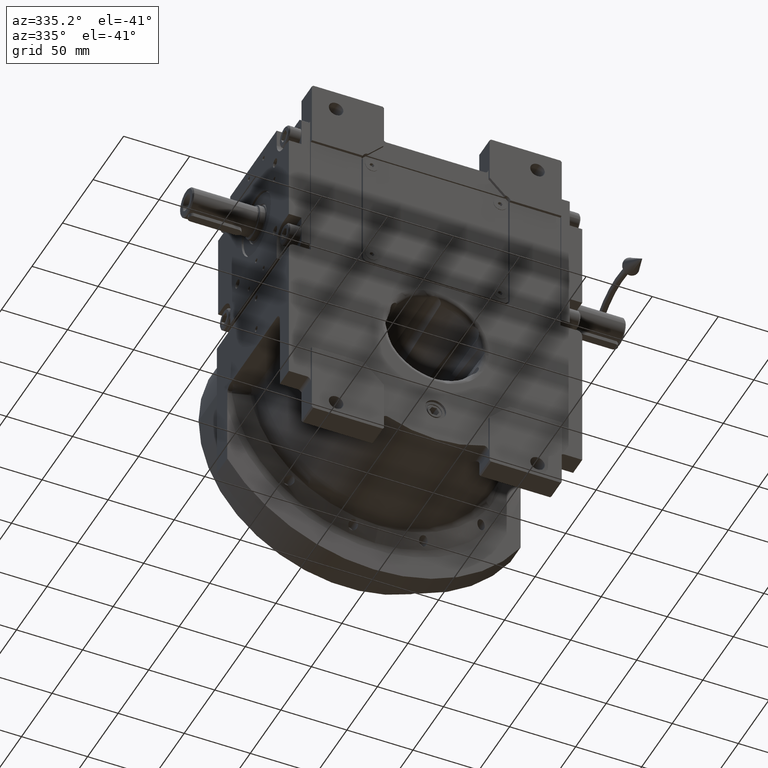
[diagram: clean part render]
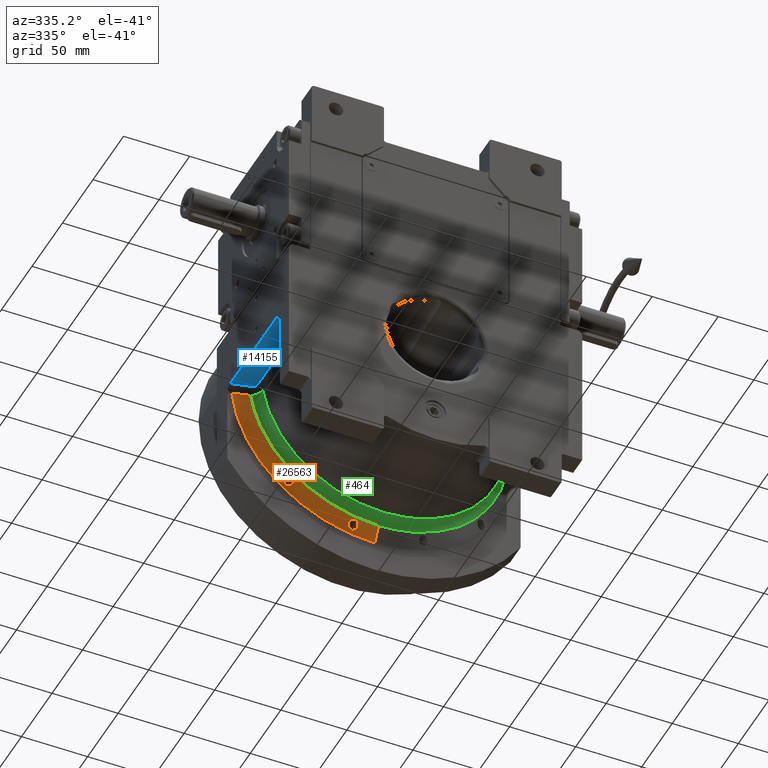
[diagram: same view with three faces highlighted in distinct colors, each labeled with its STEP entity id]
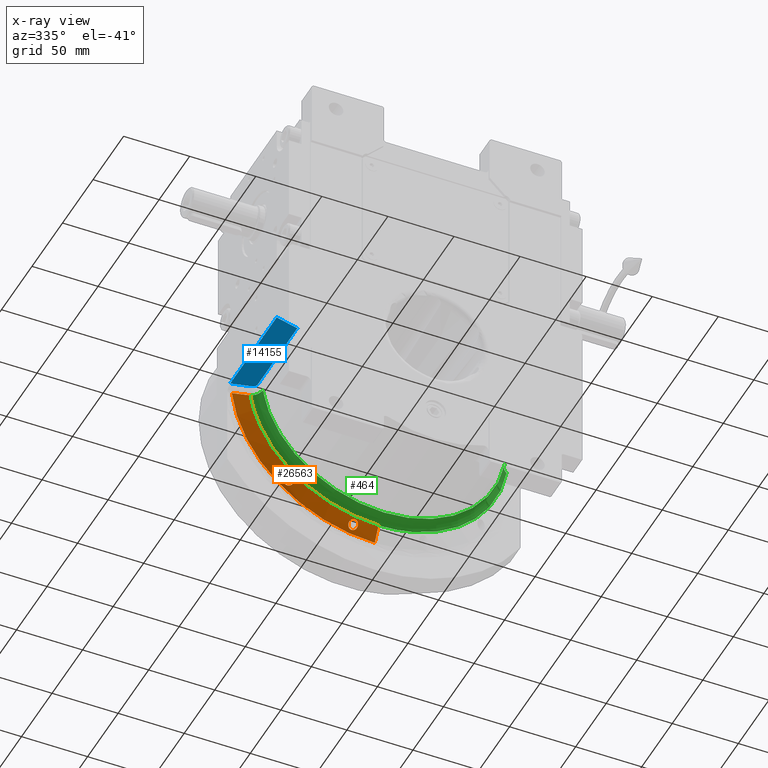
[diagram: x-ray of the same camera — body ghosted, the three highlighted faces saturated]
A machine part, auxiliary view with three faces highlighted in distinct colors.
The next image is the same camera in x-ray (body ghosted, the three faces saturated) — at least one of them is partly hidden behind the body in this view.
Their STEP definitions:

[orange] entity #26563 — the highlighted conical surface has half-angle 60 deg.
#91 = CARTESIAN_POINT ( 'NONE',  ( -66.98103439492290079, 41.60890245835828694, -75.58954542849022573 ) ) ;
#141 = CARTESIAN_POINT ( 'NONE',  ( -16.34057181366540235, 44.34432175079520277, -104.4637949725579631 ) ) ;
#174 = ORIENTED_EDGE ( 'NONE', *, *, #22288, .T. ) ;
#297 = CARTESIAN_POINT ( 'NONE',  ( -9.237055564881299892E-14, -16.12399904833045028, -1.000000000000081712 ) ) ;
#486 = CARTESIAN_POINT ( 'NONE',  ( -21.03059944355404198, 43.83795414668691848, -102.7263971811898955 ) ) ;
#772 = CARTESIAN_POINT ( 'NONE',  ( -66.47473322612175650, 41.38229406885031381, -75.51303032982036711 ) ) ;
#1092 = CARTESIAN_POINT ( 'NONE',  ( -66.63557316265840313, 41.45053153927776179, -75.52883555357412604 ) ) ;
#1249 = CARTESIAN_POINT ( 'NONE',  ( -18.09331083431307263, 40.85859617777224884, -98.04109495310648015 ) ) ;
#1298 = CARTESIAN_POINT ( 'NONE',  ( -66.92885746105687872, 44.51160760126284544, -82.22895676595210546 ) ) ;
#1418 = CARTESIAN_POINT ( 'NONE',  ( -68.14583657145338691, 42.27925522923568025, -76.10688848307425758 ) ) ;
#1588 = CARTESIAN_POINT ( 'NONE',  ( -21.28449398870388976, 43.01580564899651904, -101.2193921216443044 ) ) ;
#1822 = CARTESIAN_POINT ( 'NONE',  ( -21.20972011232749210, 43.60209097489686769, -102.2726500134179588 ) ) ;
#1924 = CARTESIAN_POINT ( 'NONE',  ( -17.73097330528007731, 40.81449223383904723, -98.02991740592824499 ) ) ;
#2146 = EDGE_CURVE ( 'NONE', #65667, #10932, #27639, .T. ) ;
#2263 = CARTESIAN_POINT ( 'NONE',  ( -19.67434926625081459, 41.31338681511606126, -98.53953226742360982 ) ) ;
#2314 = CARTESIAN_POINT ( 'NONE',  ( -68.16347946259398327, 44.72335391706063490, -81.68667453046511184 ) ) ;
#2426 = CARTESIAN_POINT ( 'NONE',  ( -63.08391339580369817, 41.02004609416165692, -77.56080104227457639 ) ) ;
#2595 = CARTESIAN_POINT ( 'NONE',  ( -18.55685797365245548, 40.94082675640963487, -98.09941162123259062 ) ) ;
#2787 = CARTESIAN_POINT ( 'NONE',  ( -65.12248920160860166, 40.94248948602814409, -75.68010028655007204 ) ) ;
#3073 = CARTESIAN_POINT ( 'NONE',  ( -58.33770022237654018, 46.16024937670292871, -108.8793721944054340 ) ) ;
#3447 = EDGE_LOOP ( 'NONE', ( #27328, #35224 ) ) ;
#3898 = VERTEX_POINT ( 'NONE', #19474 ) ;
#3939 = CARTESIAN_POINT ( 'NONE',  ( -16.65576477377504006, 44.45798922382349616, -104.6135469630497710 ) ) ;
#3968 = CARTESIAN_POINT ( 'NONE',  ( -14.96126561534554433, 41.50362317198955964, -99.69754612150774165 ) ) ;
#4230 = CARTESIAN_POINT ( 'NONE',  ( -21.28576229969385025, 43.13789616174320685, -101.4351985602574047 ) ) ;
#4256 = CARTESIAN_POINT ( 'NONE',  ( -15.69129399241424316, 44.04692640415015603, -104.0425066127885998 ) ) ;
#4576 = CARTESIAN_POINT ( 'NONE',  ( -15.35746372829867923, 43.82795239511310115, -103.7087961787889014 ) ) ;
#4737 = CARTESIAN_POINT ( 'NONE',  ( -63.68872352311440466, 42.87383470173428890, -81.18701644432728415 ) ) ;
#4923 = CARTESIAN_POINT ( 'NONE',  ( -19.41475688465490279, 44.65331294770840742, -104.4810056941321790 ) ) ;
#5085 = CARTESIAN_POINT ( 'NONE',  ( -65.76939235611618528, 44.11210652336321658, -82.27512015974016890 ) ) ;
#5209 = CARTESIAN_POINT ( 'NONE',  ( -69.59944930781109917, 43.84506854104964901, -78.44480737441226381 ) ) ;
#5259 = CARTESIAN_POINT ( 'NONE',  ( -16.26584008339917631, 44.31575046781813398, -104.4253884501384135 ) ) ;
#5536 = CARTESIAN_POINT ( 'NONE',  ( -68.83933982942379259, 42.82182288597580566, -76.74729285694229475 ) ) ;
#5591 = CARTESIAN_POINT ( 'NONE',  ( -20.63179147859929330, 44.20330385635097059, -103.4526908809163075 ) ) ;
#6097 = CARTESIAN_POINT ( 'NONE',  ( -66.19240968444481155, 44.28072426235181780, -82.31044945415027314 ) ) ;
#6329 = CARTESIAN_POINT ( 'NONE',  ( -104.2458755376282511, 43.94632228155251141, -13.01284608142500154 ) ) ;
#6360 = CARTESIAN_POINT ( 'NONE',  ( -20.63033031947024654, 41.92337690047073551, -99.42307032378499798 ) ) ;
#6698 = CARTESIAN_POINT ( 'NONE',  ( -20.42896873382872869, 41.76146683889194122, -99.17831591914084299 ) ) ;
#7045 = CARTESIAN_POINT ( 'NONE',  ( -21.28576229969385025, 43.13789616174320685, -101.4351985602574047 ) ) ;
#7105 = CARTESIAN_POINT ( 'NONE',  ( -69.60921372108985850, 44.24267680355247734, -79.35455392805745589 ) ) ;
#7435 = CARTESIAN_POINT ( 'NONE',  ( -68.86200656688704669, 44.69762216092903628, -81.04044131007844953 ) ) ;
#7555 = CARTESIAN_POINT ( 'NONE',  ( -63.15935403792212810, 40.97343432763176452, -77.39523273953560079 ) ) ;
#7891 = CARTESIAN_POINT ( 'NONE',  ( -63.54862053458841586, 40.83667992095885779, -76.76898789320883054 ) ) ;
#8056 = CARTESIAN_POINT ( 'NONE',  ( -15.44515782730545972, 41.18639484296321740, -99.06764912312088711 ) ) ;
#9066 = CARTESIAN_POINT ( 'NONE',  ( -15.27328899026993092, 41.27385452186081238, -99.24771501489367154 ) ) ;
#9451 = B_SPLINE_CURVE_WITH_KNOTS ( 'NONE', 3,
 ( #53209, #21452, #6329, #48077 ),
 .UNSPECIFIED., .F., .F.,
 ( 4, 4 ),
 ( 0.000000000000000000, 1.000000000000000000 ),
 .UNSPECIFIED. ) ;
#9825 = FACE_OUTER_BOUND ( 'NONE', #37759, .T. ) ;
#9880 = CARTESIAN_POINT ( 'NONE',  ( -64.00370762632122990, 43.12877342400288683, -81.50114351143491831 ) ) ;
#10049 = CARTESIAN_POINT ( 'NONE',  ( -14.48576229969382112, 42.45651579625150163, -101.4351985602574047 ) ) ;
#10397 = CARTESIAN_POINT ( 'NONE',  ( -14.67537095696359373, 43.11257204492451223, -102.5559673707499684 ) ) ;
#10509 = CARTESIAN_POINT ( 'NONE',  ( -9.237055564881299892E-14, -16.12399904833045028, -8.171241461241149613E-14 ) ) ;
#10736 = CARTESIAN_POINT ( 'NONE',  ( -15.04845669078737380, 43.57542461361651220, -103.3121052074970407 ) ) ;
#10932 = VERTEX_POINT ( 'NONE', #45356 ) ;
#11066 = CARTESIAN_POINT ( 'NONE',  ( -20.97532366417316041, 43.90434492157198321, -102.8550672630393876 ) ) ;
#11213 = CARTESIAN_POINT ( 'NONE',  ( -64.90545150930404361, 43.70041991443495277, -82.05113864408038182 ) ) ;
#11342 = CARTESIAN_POINT ( 'NONE',  ( -68.76969739065823717, 42.75981871087341801, -76.66549293274911747 ) ) ;
#11509 = CARTESIAN_POINT ( 'NONE',  ( -20.41225874826803377, 41.74893943512567773, -99.15960365666485643 ) ) ;
#11562 = CARTESIAN_POINT ( 'NONE',  ( -65.85127273574883588, 44.14564530751782456, -82.28400234946296621 ) ) ;
#12164 = CARTESIAN_POINT ( 'NONE',  ( -19.50531534579709003, 41.24072978416599256, -98.44479798004677207 ) ) ;
#12214 = CARTESIAN_POINT ( 'NONE',  ( -66.76033598893540955, 44.46409153863007901, -82.25981218219514801 ) ) ;
#12857 = CARTESIAN_POINT ( 'NONE',  ( -19.43106196501958749, 41.21080904760351160, -98.40664260635351468 ) ) ;
#13313 = CARTESIAN_POINT ( 'NONE',  ( -6.107335892911600708E-14, 46.16024936020976099, -108.8793717567185979 ) ) ;
#14100 = CARTESIAN_POINT ( 'NONE',  ( -6.107335892911600708E-14, 46.16024936020976099, -108.8793717567185979 ) ) ;
#14522 = CARTESIAN_POINT ( 'NONE',  ( -19.61955841385792709, 44.61189838739642965, -104.3697133830653598 ) ) ;
#14878 = CARTESIAN_POINT ( 'NONE',  ( -20.25895421612055003, 44.39831624050118108, -103.8703955713336171 ) ) ;
#15196 = CARTESIAN_POINT ( 'NONE',  ( -18.80055132970501930, 44.72215395728382958, -104.7142789570583830 ) ) ;
#15363 = CARTESIAN_POINT ( 'NONE',  ( -63.66985884709637844, 42.85760206404210493, -81.16608062581808269 ) ) ;
#15703 = CARTESIAN_POINT ( 'NONE',  ( -63.37391937386676943, 42.58071153090598671, -80.78868970775506853 ) ) ;
#15835 = CARTESIAN_POINT ( 'NONE',  ( -65.28648619756604887, 40.98176596937341998, -75.62859115545653310 ) ) ;
#15892 = CARTESIAN_POINT ( 'NONE',  ( -16.87592498526322160, 44.52199599735879332, -104.6905886229498606 ) ) ;
#16172 = CARTESIAN_POINT ( 'NONE',  ( -68.96826150227877861, 42.94293900535480901, -76.91345645266756037 ) ) ;
#16375 = CARTESIAN_POINT ( 'NONE',  ( -64.25410358641379105, 43.30305935057343447, -81.68828093705425886 ) ) ;
#16499 = CARTESIAN_POINT ( 'NONE',  ( -65.20379773486391173, 40.96163226148118497, -75.65383477414046354 ) ) ;
#16836 = CARTESIAN_POINT ( 'NONE',  ( -66.55447645187153682, 41.41585243786412462, -75.52024901825220127 ) ) ;
#17012 = CARTESIAN_POINT ( 'NONE',  ( -20.71967630857076870, 42.00738003604246984, -99.55309717966524374 ) ) ;
#17062 = CARTESIAN_POINT ( 'NONE',  ( -69.29082736863422554, 44.54848433061275870, -80.33296053711940488 ) ) ;
#17335 = CARTESIAN_POINT ( 'NONE',  ( -19.81200341095583184, 41.38053623416616489, -98.63054741338582687 ) ) ;
#17388 = CARTESIAN_POINT ( 'NONE',  ( -67.25988290382591117, 44.59094884364967015, -82.13601500811972755 ) ) ;
#17665 = CARTESIAN_POINT ( 'NONE',  ( -16.68307330778149122, 40.83781011218309942, -98.25437498801618119 ) ) ;
#17838 = CARTESIAN_POINT ( 'NONE',  ( -64.34507903640626125, 40.81538912432809241, -76.05411956434583942 ) ) ;
#18019 = CARTESIAN_POINT ( 'NONE',  ( -15.72365593661523597, 41.06205274667513550, -98.80584197496871468 ) ) ;
#18202 = CARTESIAN_POINT ( 'NONE',  ( -63.70267625730842553, 40.81414458692709246, -76.59047803867358084 ) ) ;
#18361 = CARTESIAN_POINT ( 'NONE',  ( -20.88604618175581251, 42.17867415054664804, -99.82147949796845410 ) ) ;
#18526 = CARTESIAN_POINT ( 'NONE',  ( -63.34765723381097047, 40.89214218333670203, -77.05904806786962524 ) ) ;
#19474 = CARTESIAN_POINT ( 'NONE',  ( -96.85709795745168549, 39.87903522507845366, -14.92320458950059958 ) ) ;
#19678 = CARTESIAN_POINT ( 'NONE',  ( -19.08425922301002942, 44.69644400183336330, -104.6175784297161613 ) ) ;
#20013 = CARTESIAN_POINT ( 'NONE',  ( -19.90598198968850241, 44.53132110200656513, -104.1732168648850205 ) ) ;
#20044 = CARTESIAN_POINT ( 'NONE',  ( -14.79556050282710622, 41.67173104606924028, -100.0166030222071925 ) ) ;
#20193 = CARTESIAN_POINT ( 'NONE',  ( -64.61342865939180058, 43.53034230200678678, -81.90636284041171677 ) ) ;
#20374 = CARTESIAN_POINT ( 'NONE',  ( -20.04400066310544659, 44.48641859808112997, -104.0675785357199743 ) ) ;
#20699 = CARTESIAN_POINT ( 'NONE',  ( -14.56200319238054064, 42.87641215788772797, -102.1589670684577982 ) ) ;
#20806 = DIRECTION ( 'NONE',  ( 0.000000000000000000, 1.000000000000000000, 0.000000000000000000 ) ) ;
#20858 = LINE ( 'NONE', #297, #62812 ) ;
#21028 = CARTESIAN_POINT ( 'NONE',  ( -16.39080945742552231, 44.36310321183741223, -104.4888525995157380 ) ) ;
#21159 = B_SPLINE_CURVE_WITH_KNOTS ( 'NONE', 3,
 ( #7045, #1588, #43351, #38904, #33771, #32749, #33076, #48116, #27992, #49134, #18361, #17012, #6360, #53572, #27305, #6698, #11509, #64190, #28328, #17335, #2263, #12164, #12857, #28668, #38216, #64516, #59042, #2595, #32431, #53246, #1249, #48801, #1924, #22156, #42989, #43672, #17665, #38542, #23174, #44008, #64852, #18019, #35452, #30019, #55938, #8056, #9066, #50820, #3968, #39895, #20044, #65537, #34457, #24532, #56294, #40225, #50482 ),
 .UNSPECIFIED., .F., .F.,
 ( 4, 2, 1, 1, 2, 2, 2, 1, 1, 2, 2, 2, 1, 1, 2, 2, 2, 1, 2, 2, 1, 1, 2, 2, 2, 1, 1, 2, 2, 2, 1, 1, 2, 2, 4 ),
 ( 0.000000000000000000, 0.06249999999998914757, 0.09374999999998255562, 0.1093749999999806821, 0.1171874999999786837, 0.1249999999999766853, 0.1874999999999735489, 0.2187499999999719669, 0.2343749999999697187, 0.2421874999999696909, 0.2499999999999696354, 0.3124999999999690248, 0.3437499999999678035, 0.3593749999999670264, 0.3671874999999674150, 0.3749999999999678590, 0.4374999999999742428, 0.4687499999999781286, 0.4843749999999802935, 0.4999999999999824585, 0.5624999999999940048, 0.5937499999999997780, 0.6093750000000032196, 0.6250000000000065503, 0.6875000000000204281, 0.7187500000000257572, 0.7343750000000283107, 0.7421875000000283107, 0.7500000000000283107, 0.8125000000000383027, 0.8437500000000435207, 0.8593750000000445199, 0.8671875000000435207, 0.8750000000000424105, 1.000000000000000000 ),
 .UNSPECIFIED. ) ;
#21193 = DIRECTION ( 'NONE',  ( 0.000000000000000000, 0.5000004003414660891, -0.8660251726470620248 ) ) ;
#21384 = CARTESIAN_POINT ( 'NONE',  ( -21.04165536412680382, 43.82386856158029786, -102.6992293690995695 ) ) ;
#21452 = CARTESIAN_POINT ( 'NONE',  ( -100.4589447431849436, 41.85258171595715027, -13.99357272345444514 ) ) ;
#21661 = CARTESIAN_POINT ( 'NONE',  ( -66.21423811792537606, 41.27496981589291636, -75.49464004436904929 ) ) ;
#21680 = CARTESIAN_POINT ( 'NONE',  ( -108.2181486248951927, 46.16020982646139714, -11.98056577044130044 ) ) ;
#21996 = CARTESIAN_POINT ( 'NONE',  ( -69.28958993729051485, 43.29527647019445880, -77.44495037072735499 ) ) ;
#22156 = CARTESIAN_POINT ( 'NONE',  ( -17.37299495985725528, 40.79383213476273795, -98.05786431712239448 ) ) ;
#22288 = EDGE_CURVE ( 'NONE', #3898, #63179, #9451, .T. ) ;
#22329 = CARTESIAN_POINT ( 'NONE',  ( -9.226961790163737573E-14, 39.87903547113305081, -97.99999599669763484 ) ) ;
#22677 = CARTESIAN_POINT ( 'NONE',  ( -89.14033501822824235, 39.87903545553515983, -65.00782844006340611 ) ) ;
#23009 = CARTESIAN_POINT ( 'NONE',  ( -63.25470645955091697, 40.92528812985813857, -77.20965089476800358 ) ) ;
#23174 = CARTESIAN_POINT ( 'NONE',  ( -16.35177585680262879, 40.88427153014217197, -98.39188398362193766 ) ) ;
#23184 = B_SPLINE_CURVE_WITH_KNOTS ( 'NONE', 3,
 ( #10049, #30645, #67541, #20699, #66848, #57258, #10397, #46343, #35774, #31327, #10736, #51448, #45672, #47010, #41544, #4576, #52128, #4256, #26197, #61739, #5259, #141, #21028, #50791, #3939, #15892, #41876, #67203, #61386, #51786, #66514, #25177, #57600, #15196, #36779, #19678, #45998, #4923, #14522, #20013, #20374, #40869, #14878, #36095, #56918, #38438, #5591, #31983, #53801, #11066, #53143, #486, #21384, #1822, #58258, #31648 ),
 .UNSPECIFIED., .F., .F.,
 ( 4, 2, 1, 2, 2, 2, 1, 1, 2, 2, 2, 1, 1, 2, 2, 2, 1, 2, 2, 1, 1, 2, 2, 2, 1, 1, 2, 2, 2, 1, 1, 2, 2, 4 ),
 ( 0.000000000000000000, 0.06249999999999347744, 0.09374999999999225619, 0.1093749999999916872, 0.1249999999999911460, 0.1874999999999814593, 0.2187499999999770461, 0.2343749999999740485, 0.2421874999999714118, 0.2499999999999688027, 0.3124999999999572564, 0.3437499999999524269, 0.3593749999999503175, 0.3671874999999504285, 0.3749999999999504841, 0.4374999999999548694, 0.4687499999999577560, 0.4843749999999595879, 0.4999999999999614753, 0.5624999999999683586, 0.5937499999999721334, 0.6093749999999740208, 0.6249999999999759082, 0.6874999999999871214, 0.7187499999999930056, 0.7343749999999960032, 0.7421874999999971134, 0.7499999999999983347, 0.8124999999999988898, 0.8437499999999997780, 0.8593750000000002220, 0.8671875000000004441, 0.8750000000000005551, 1.000000000000000000 ),
 .UNSPECIFIED. ) ;
#23305 =( BOUNDED_CURVE ( )  B_SPLINE_CURVE ( 3, ( #39667, #56069, #3073, #13313 ),
 .UNSPECIFIED., .F., .F. ) 
 B_SPLINE_CURVE_WITH_KNOTS ( ( 4, 4 ),
 ( 4.894359738531879778, 6.354897060524587360 ),
 .UNSPECIFIED. ) 
 CURVE ( )  GEOMETRIC_REPRESENTATION_ITEM ( )  RATIONAL_B_SPLINE_CURVE ( ( 1.000000000000000000, 0.8299968090623841555, 0.8299968090623841555, 1.000000000000000000 ) ) 
 REPRESENTATION_ITEM ( '' )  );
#23891 = EDGE_CURVE ( 'NONE', #41818, #30299, #23184, .T. ) ;
#24532 = CARTESIAN_POINT ( 'NONE',  ( -14.72909111186169184, 41.75546887470282797, -100.1730061314239890 ) ) ;
#25177 = CARTESIAN_POINT ( 'NONE',  ( -18.03876888054717753, 44.71765732841326013, -104.8404434510402439 ) ) ;
#25404 = VERTEX_POINT ( 'NONE', #47779 ) ;
#25623 = FACE_BOUND ( 'NONE', #3447, .T. ) ;
#25934 = CARTESIAN_POINT ( 'NONE',  ( -69.60712379771349845, 44.04619344483090515, -78.90257764125479412 ) ) ;
#26197 = CARTESIAN_POINT ( 'NONE',  ( -15.95764705290686436, 44.18196428957369193, -104.2385230270173793 ) ) ;
#26472 = CARTESIAN_POINT ( 'NONE',  ( -67.78784862725862581, 42.04911731647565176, -75.89227737039405497 ) ) ;
#26563 = ADVANCED_FACE ( 'NONE', ( #9825, #25623, #46460 ), #49776, .T. ) ;
#26863 = AXIS2_PLACEMENT_3D ( 'NONE', #10509, #20806, #42662 ) ;
#27039 = CARTESIAN_POINT ( 'NONE',  ( -68.44614220625969381, 44.72958614862602644, -81.46407423724764385 ) ) ;
#27073 = ORIENTED_EDGE ( 'NONE', *, *, #23891, .T. ) ;
#27153 = CARTESIAN_POINT ( 'NONE',  ( -69.19560774908069334, 43.18003282724071568, -77.26115480791294488 ) ) ;
#27305 = CARTESIAN_POINT ( 'NONE',  ( -20.46384103215330796, 41.78809794934888799, -99.21822417469445554 ) ) ;
#27328 = ORIENTED_EDGE ( 'NONE', *, *, #2146, .T. ) ;
#27353 = CARTESIAN_POINT ( 'NONE',  ( -69.52021447572523982, 44.40017289342045359, -79.79522197411236561 ) ) ;
#27639 = B_SPLINE_CURVE_WITH_KNOTS ( 'NONE', 3,
 ( #57876, #5209, #62674, #21996, #27153, #58202, #16172, #5536, #11342, #38053, #37058, #1418, #52083, #43180, #26472, #58881, #31278, #47959, #46956, #91, #31926, #1092, #16836, #37725, #772, #21661, #63345, #41825, #58561, #15835, #16499, #53745, #2787, #49303, #48962, #17838, #64684, #33265, #55107, #18202, #7891, #18526, #23009, #7555, #39389, #48634, #2426, #28501, #65040, #39065 ),
 .UNSPECIFIED., .F., .F.,
 ( 4, 2, 2, 2, 2, 2, 1, 1, 2, 2, 2, 1, 1, 2, 2, 2, 1, 1, 2, 2, 2, 2, 2, 2, 1, 1, 2, 2, 4 ),
 ( 0.000000000000000000, 0.1250000000000126010, 0.1875000000000179856, 0.2187500000000215106, 0.2500000000000250355, 0.3125000000000333622, 0.3437500000000375810, 0.3593750000000397460, 0.3671875000000401346, 0.3750000000000405231, 0.4375000000000418554, 0.4687500000000425771, 0.4843750000000416889, 0.4921875000000395239, 0.5000000000000373035, 0.5625000000000409672, 0.5937500000000415223, 0.6093750000000428546, 0.6171875000000442979, 0.6250000000000457412, 0.6875000000000496270, 0.7187500000000521805, 0.7500000000000546230, 0.8125000000000593969, 0.8437500000000622835, 0.8593750000000613953, 0.8671875000000599520, 0.8750000000000585088, 1.000000000000000000 ),
 .UNSPECIFIED. ) ;
#27992 = CARTESIAN_POINT ( 'NONE',  ( -21.06803777068973105, 42.43558813399067020, -100.2379555580155710 ) ) ;
#28328 = CARTESIAN_POINT ( 'NONE',  ( -20.07767688368522485, 41.52133102419982436, -98.82574960627741234 ) ) ;
#28501 = CARTESIAN_POINT ( 'NONE',  ( -62.89322788485443283, 41.15352526273451872, -78.01376035383742646 ) ) ;
#28668 = CARTESIAN_POINT ( 'NONE',  ( -19.38115713765209591, 41.19113255455904721, -98.38174806882180690 ) ) ;
#30019 = CARTESIAN_POINT ( 'NONE',  ( -15.50875018745248646, 41.15558517863380672, -99.00369999937544208 ) ) ;
#30299 = VERTEX_POINT ( 'NONE', #4230 ) ;
#30645 = CARTESIAN_POINT ( 'NONE',  ( -14.48666419497512692, 42.57763028470709799, -101.6469742920354093 ) ) ;
#30807 = CARTESIAN_POINT ( 'NONE',  ( -65.42146648564371958, 43.95873420119437469, -82.21283163228740420 ) ) ;
#31187 = EDGE_LOOP ( 'NONE', ( #54266, #27073 ) ) ;
#31278 = CARTESIAN_POINT ( 'NONE',  ( -67.71859459580825558, 42.00727331307068368, -75.85695293083811919 ) ) ;
#31327 = CARTESIAN_POINT ( 'NONE',  ( -14.88239009849064942, 43.40788852445106016, -103.0430006522040287 ) ) ;
#31479 = CARTESIAN_POINT ( 'NONE',  ( -63.20753063041613729, 42.40110194314259218, -80.52382021824632830 ) ) ;
#31648 = CARTESIAN_POINT ( 'NONE',  ( -21.28576229969385025, 43.13789616174320685, -101.4351985602574047 ) ) ;
#31926 = CARTESIAN_POINT ( 'NONE',  ( -66.82312795616010703, 41.53371599020356086, -75.55544187858374983 ) ) ;
#31983 = CARTESIAN_POINT ( 'NONE',  ( -20.80927112594839556, 44.06598087751950032, -103.1744245509571130 ) ) ;
#32431 = CARTESIAN_POINT ( 'NONE',  ( -18.38536429704581820, 40.90473766381333576, -98.06815401260659826 ) ) ;
#32480 = CARTESIAN_POINT ( 'NONE',  ( -65.90604268119497533, 44.16779016119869539, -82.28928753140728247 ) ) ;
#32749 = CARTESIAN_POINT ( 'NONE',  ( -21.11923272435063126, 42.52298233860456378, -100.3818718903396245 ) ) ;
#33076 = CARTESIAN_POINT ( 'NONE',  ( -21.09396469529720264, 42.47888227581890419, -100.3091316150683525 ) ) ;
#33265 = CARTESIAN_POINT ( 'NONE',  ( -64.05729598748679621, 40.80156697721873371, -76.26540628826786872 ) ) ;
#33771 = CARTESIAN_POINT ( 'NONE',  ( -21.17229993334808213, 42.62628893877541003, -100.5535551311820797 ) ) ;
#33822 = CARTESIAN_POINT ( 'NONE',  ( -68.06527903328293405, 44.71660584721222165, -81.75330711151792684 ) ) ;
#34457 = CARTESIAN_POINT ( 'NONE',  ( -14.74029468243483620, 41.74065502920740300, -100.1454236543688410 ) ) ;
#35224 = ORIENTED_EDGE ( 'NONE', *, *, #53907, .T. ) ;
#35452 = CARTESIAN_POINT ( 'NONE',  ( -15.57188141827978534, 41.12625136255478253, -98.94237495083918077 ) ) ;
#35774 = CARTESIAN_POINT ( 'NONE',  ( -14.78864147528342166, 43.29175866863392486, -102.8532671433447945 ) ) ;
#35930 = CARTESIAN_POINT ( 'NONE',  ( -63.63404868279544502, 42.82636693248890225, -81.12541142282891826 ) ) ;
#36095 = CARTESIAN_POINT ( 'NONE',  ( -20.30058444709403176, 44.37950385483397753, -103.8290665792478791 ) ) ;
#36261 = CARTESIAN_POINT ( 'NONE',  ( -64.65925856944872407, 43.55754528270143311, -81.93021994396826813 ) ) ;
#36484 = ORIENTED_EDGE ( 'NONE', *, *, #58047, .T. ) ;
#36779 = CARTESIAN_POINT ( 'NONE',  ( -18.97115414708276759, 44.70779545303662417, -104.6581295405401022 ) ) ;
#36934 = CARTESIAN_POINT ( 'NONE',  ( -64.38391404750127833, 43.38927535313252548, -81.77616167653845025 ) ) ;
#37058 = CARTESIAN_POINT ( 'NONE',  ( -68.39682589979072702, 42.45573547165578532, -76.29243621763488648 ) ) ;
#37262 = CARTESIAN_POINT ( 'NONE',  ( -64.52069125341098754, 43.47410091460231740, -81.85543528737092345 ) ) ;
#37379 = ORIENTED_EDGE ( 'NONE', *, *, #53874, .F. ) ;
#37593 = CARTESIAN_POINT ( 'NONE',  ( -69.15702053396996973, 44.61481230465477665, -80.59974715041026627 ) ) ;
#37725 = CARTESIAN_POINT ( 'NONE',  ( -66.50025254475291092, 41.39294889860050120, -75.51514955326899781 ) ) ;
#37759 = EDGE_LOOP ( 'NONE', ( #37379, #62315, #174, #36484 ) ) ;
#37937 = CARTESIAN_POINT ( 'NONE',  ( -67.20663157078297445, 44.57900473858948232, -82.15286389290443481 ) ) ;
#38050 = CARTESIAN_POINT ( 'NONE',  ( -96.85709795745168549, 39.87903522507845366, -14.92320458950059958 ) ) ;
#38053 = CARTESIAN_POINT ( 'NONE',  ( -68.55287735324341725, 42.57587634206521443, -76.43199053713945545 ) ) ;
#38216 = CARTESIAN_POINT ( 'NONE',  ( -19.35750598281732593, 41.18199661363515673, -98.37027750101459844 ) ) ;
#38268 = CARTESIAN_POINT ( 'NONE',  ( -68.35332002664478068, 44.72986898887842244, -81.54261223423003457 ) ) ;
#38438 = CARTESIAN_POINT ( 'NONE',  ( -20.49560609983234727, 44.28609036725635661, -103.6259769247353262 ) ) ;
#38542 = CARTESIAN_POINT ( 'NONE',  ( -16.62494767699519116, 40.84514056900765411, -98.27710281745677889 ) ) ;
#38904 = CARTESIAN_POINT ( 'NONE',  ( -21.20764128211236610, 42.71553423092938573, -100.7040799317437347 ) ) ;
#38954 = CARTESIAN_POINT ( 'NONE',  ( -66.42122876507963269, 44.36073261308597182, -82.30411895984397574 ) ) ;
#39065 = CARTESIAN_POINT ( 'NONE',  ( -62.80712379771359366, 41.52342507202660471, -78.90257764125469464 ) ) ;
#39389 = CARTESIAN_POINT ( 'NONE',  ( -63.12128478878985050, 40.99609896814161658, -77.47689744640864262 ) ) ;
#39667 = CARTESIAN_POINT ( 'NONE',  ( -108.2181486248951927, 46.16020982646139714, -11.98056577044130044 ) ) ;
#39895 = CARTESIAN_POINT ( 'NONE',  ( -14.87947116490785504, 41.57852984715079714, -99.84097251891604685 ) ) ;
#40225 = CARTESIAN_POINT ( 'NONE',  ( -14.48469479762536771, 42.21143044104459818, -101.0065443675093633 ) ) ;
#40869 = CARTESIAN_POINT ( 'NONE',  ( -20.19584969340419889, 44.42595808634818155, -103.9314742084429355 ) ) ;
#40943 = CARTESIAN_POINT ( 'NONE',  ( -14.48576229969382112, 42.45651579625150163, -101.4351985602574047 ) ) ;
#41050 = CARTESIAN_POINT ( 'NONE',  ( -63.46399101716926339, 42.67163078215280336, -80.91817936349353602 ) ) ;
#41201 = VERTEX_POINT ( 'NONE', #14100 ) ;
#41544 = CARTESIAN_POINT ( 'NONE',  ( -15.34037488712204578, 43.81556156169592242, -103.6896300449257069 ) ) ;
#41818 = VERTEX_POINT ( 'NONE', #40943 ) ;
#41825 = CARTESIAN_POINT ( 'NONE',  ( -65.64812529342107439, 41.08249569474566698, -75.54620890274522083 ) ) ;
#41876 = CARTESIAN_POINT ( 'NONE',  ( -17.21478838807860257, 44.59926085442815946, -104.7708600915680108 ) ) ;
#42382 = CARTESIAN_POINT ( 'NONE',  ( -62.89131099387164170, 41.94294624658914472, -79.76299823087541085 ) ) ;
#42662 = DIRECTION ( 'NONE',  ( 0.000000000000000000, 0.000000000000000000, -1.000000000000000000 ) ) ;
#42989 = CARTESIAN_POINT ( 'NONE',  ( -16.96778701342184803, 40.80998175745905598, -98.15680085979037983 ) ) ;
#43177 = CARTESIAN_POINT ( 'NONE',  ( -50.67561381681266397, 39.87903546226575457, -97.99999599352845792 ) ) ;
#43180 = CARTESIAN_POINT ( 'NONE',  ( -67.85742529607996687, 42.09172163265807853, -75.92907241657195527 ) ) ;
#43351 = CARTESIAN_POINT ( 'NONE',  ( -21.26467281662556985, 42.89495385219974111, -101.0096492284983043 ) ) ;
#43672 = CARTESIAN_POINT ( 'NONE',  ( -16.79663474786736188, 40.82552868253295486, -98.21344451296076272 ) ) ;
#43723 = CARTESIAN_POINT ( 'NONE',  ( -69.06369080703318275, 44.64581447481833720, -80.75035122830743717 ) ) ;
#44008 = CARTESIAN_POINT ( 'NONE',  ( -16.14736164171974409, 40.92851939991503230, -98.50325216349951063 ) ) ;
#44062 = CARTESIAN_POINT ( 'NONE',  ( -65.93217163245451218, 44.17822466735806586, -82.29151393330606368 ) ) ;
#45356 = CARTESIAN_POINT ( 'NONE',  ( -62.80712379771359366, 41.52342507202660471, -78.90257764125469464 ) ) ;
#45672 = CARTESIAN_POINT ( 'NONE',  ( -15.25333824352383161, 43.75040207178881957, -103.5883998608721726 ) ) ;
#45998 = CARTESIAN_POINT ( 'NONE',  ( -19.14182508336368116, 44.68970161066344815, -104.5951880476351050 ) ) ;
#46343 = CARTESIAN_POINT ( 'NONE',  ( -14.69234904183704593, 43.14104743672896802, -102.6033608295535942 ) ) ;
#46460 = FACE_BOUND ( 'NONE', #31187, .T. ) ;
#46516 = CARTESIAN_POINT ( 'NONE',  ( -63.84908069151232013, 43.01011091101933914, -81.36121926178569197 ) ) ;
#46956 = CARTESIAN_POINT ( 'NONE',  ( -67.29305091126853711, 41.76445607495875834, -75.67290740426270190 ) ) ;
#47010 = CARTESIAN_POINT ( 'NONE',  ( -15.30523906203252160, 43.78958099941509374, -103.6493347907393172 ) ) ;
#47779 = CARTESIAN_POINT ( 'NONE',  ( -9.226961790163737573E-14, 39.87903547113305081, -97.99999599669763484 ) ) ;
#47959 = CARTESIAN_POINT ( 'NONE',  ( -67.49600584932935021, 41.87506605974715512, -75.74868794563492713 ) ) ;
#48077 = CARTESIAN_POINT ( 'NONE',  ( -108.2181486248951927, 46.16020982646139714, -11.98056577044130044 ) ) ;
#48116 = CARTESIAN_POINT ( 'NONE',  ( -21.07655948565460591, 42.44952094383526031, -100.2608239445140157 ) ) ;
#48535 = B_SPLINE_CURVE_WITH_KNOTS ( 'NONE', 3,
 ( #52613, #57757, #42382, #67013, #31479, #15703, #41050, #51608, #35930, #15363, #4737, #46516, #9880, #16375, #36934, #37262, #20193, #36261, #11213, #56748, #30807, #51959, #5085, #11562, #32480, #44062, #6097, #38954, #12214, #1298, #54314, #37937, #17388, #53966, #49185, #33822, #2314, #38268, #27039, #59790, #7435, #43723, #37593, #64908, #17062, #59095, #58429, #27353, #7105, #53294 ),
 .UNSPECIFIED., .F., .F.,
 ( 4, 2, 2, 1, 1, 2, 2, 2, 1, 2, 2, 2, 1, 1, 2, 2, 2, 1, 2, 2, 2, 2, 2, 2, 1, 1, 2, 2, 4 ),
 ( 0.000000000000000000, 0.1250000000000422717, 0.1875000000000629219, 0.2187500000000711098, 0.2343750000000764389, 0.2421875000000786593, 0.2500000000000808797, 0.3125000000000868750, 0.3437500000000894840, 0.3593750000000908718, 0.3750000000000922595, 0.4375000000000970335, 0.4687500000000986433, 0.4843750000000974221, 0.4921875000000952571, 0.5000000000000931477, 0.5625000000000769385, 0.5937500000000691669, 0.6093750000000649480, 0.6250000000000608402, 0.6875000000000526246, 0.7187500000000485167, 0.7500000000000444089, 0.8125000000000389688, 0.8437500000000353051, 0.8593750000000317524, 0.8671875000000296430, 0.8750000000000276446, 1.000000000000000000 ),
 .UNSPECIFIED. ) ;
#48634 = CARTESIAN_POINT ( 'NONE',  ( -63.09652565978431227, 41.01165996309254069, -77.53181523845177026 ) ) ;
#48801 = CARTESIAN_POINT ( 'NONE',  ( -18.03590428052120131, 40.85087711241153841, -98.03807942498789885 ) ) ;
#48962 = CARTESIAN_POINT ( 'NONE',  ( -64.64903332278667847, 40.84788838230502250, -75.87015528424863930 ) ) ;
#49134 = CARTESIAN_POINT ( 'NONE',  ( -20.98053380437553983, 42.29725401803037244, -100.0115089158826720 ) ) ;
#49185 = CARTESIAN_POINT ( 'NONE',  ( -67.76099405477167181, 44.68589003584848030, -81.93691546389598557 ) ) ;
#49303 = CARTESIAN_POINT ( 'NONE',  ( -64.86470266221473935, 40.88449624298377216, -75.76931417373737077 ) ) ;
#49776 = CONICAL_SURFACE ( 'NONE', #26863, 1.000000000000000000, 1.047197088922029673 ) ;
#50482 = CARTESIAN_POINT ( 'NONE',  ( -14.48576229969382112, 42.45651579625150163, -101.4351985602574047 ) ) ;
#50791 = CARTESIAN_POINT ( 'NONE',  ( -16.41490999849959564, 44.37192262617112704, -104.5005325385906332 ) ) ;
#50820 = CARTESIAN_POINT ( 'NONE',  ( -15.13798122035731097, 41.36044991069221055, -99.42011109997082485 ) ) ;
#51448 = CARTESIAN_POINT ( 'NONE',  ( -15.13784960877018904, 43.65752798455915951, -103.4427824038960892 ) ) ;
#51608 = CARTESIAN_POINT ( 'NONE',  ( -63.58120486175232600, 42.77965354232971862, -81.06403058566984043 ) ) ;
#51786 = CARTESIAN_POINT ( 'NONE',  ( -17.67824520509845598, 44.67650587190777145, -104.8293008482791322 ) ) ;
#51959 = CARTESIAN_POINT ( 'NONE',  ( -65.58026375787545703, 44.03159883490280890, -82.24772289056708985 ) ) ;
#52083 = CARTESIAN_POINT ( 'NONE',  ( -68.01611235160906688, 42.19194787382414802, -76.02005988187434582 ) ) ;
#52128 = CARTESIAN_POINT ( 'NONE',  ( -15.52711586277287203, 43.94838719704101493, -103.8945261759517820 ) ) ;
#52613 = CARTESIAN_POINT ( 'NONE',  ( -62.80712379771359366, 41.52342507202660471, -78.90257764125469464 ) ) ;
#53143 = CARTESIAN_POINT ( 'NONE',  ( -21.00882296343622357, 43.86467474679685807, -102.7780917750895782 ) ) ;
#53209 = CARTESIAN_POINT ( 'NONE',  ( -96.85709795745168549, 39.87903522507845366, -14.92320458950059958 ) ) ;
#53246 = CARTESIAN_POINT ( 'NONE',  ( -18.21057922783538174, 40.87606404266259830, -98.05015348996006708 ) ) ;
#53294 = CARTESIAN_POINT ( 'NONE',  ( -69.60712379771349845, 44.04619344483090515, -78.90257764125479412 ) ) ;
#53572 = CARTESIAN_POINT ( 'NONE',  ( -20.51538845011924650, 41.82825010524432940, -99.27859909169092134 ) ) ;
#53630 = EDGE_CURVE ( 'NONE', #25404, #3898, #61228, .T. ) ;
#53745 = CARTESIAN_POINT ( 'NONE',  ( -65.14875795603359165, 40.94856935376207474, -75.67138386566044517 ) ) ;
#53801 = CARTESIAN_POINT ( 'NONE',  ( -20.89131294262858063, 43.99403358498545913, -103.0307058737528223 ) ) ;
#53874 = EDGE_CURVE ( 'NONE', #25404, #41201, #20858, .T. ) ;
#53907 = EDGE_CURVE ( 'NONE', #10932, #65667, #48535, .T. ) ;
#53966 = CARTESIAN_POINT ( 'NONE',  ( -67.54522719715143353, 44.65145069251460797, -82.03760044057291623 ) ) ;
#54266 = ORIENTED_EDGE ( 'NONE', *, *, #57149, .T. ) ;
#54314 = CARTESIAN_POINT ( 'NONE',  ( -67.09574597167642196, 44.55287856368668287, -82.18504234988787971 ) ) ;
#55107 = CARTESIAN_POINT ( 'NONE',  ( -63.96432609739975561, 40.80200084720957676, -76.34437861805801617 ) ) ;
#55938 = CARTESIAN_POINT ( 'NONE',  ( -15.46708741116452579, 41.17554552792183387, -99.04520887559122855 ) ) ;
#56069 = CARTESIAN_POINT ( 'NONE',  ( -101.7990064294248214, 46.16025384316066038, -69.96404336023731219 ) ) ;
#56294 = CARTESIAN_POINT ( 'NONE',  ( -14.56338134256172623, 41.98219371904489350, -100.5942625939804742 ) ) ;
#56748 = CARTESIAN_POINT ( 'NONE',  ( -65.10830660749691390, 43.80786087564487730, -82.12791959394272112 ) ) ;
#56918 = CARTESIAN_POINT ( 'NONE',  ( -20.32229869898583985, 44.36936778267003945, -103.8069289162966840 ) ) ;
#57149 = EDGE_CURVE ( 'NONE', #30299, #41818, #21159, .T. ) ;
#57258 = CARTESIAN_POINT ( 'NONE',  ( -14.64265084683891693, 43.05376670292849894, -102.4577565763923985 ) ) ;
#57600 = CARTESIAN_POINT ( 'NONE',  ( -18.39602248147717845, 44.73697642595696777, -104.8125220999484810 ) ) ;
#57757 = CARTESIAN_POINT ( 'NONE',  ( -62.81439731020464734, 41.72724188669391054, -79.34799604412170027 ) ) ;
#57876 = CARTESIAN_POINT ( 'NONE',  ( -69.60712379771349845, 44.04619344483090515, -78.90257764125479412 ) ) ;
#58047 = EDGE_CURVE ( 'NONE', #63179, #41201, #23305, .T. ) ;
#58202 = CARTESIAN_POINT ( 'NONE',  ( -69.02838006662868509, 43.00276300549116115, -76.99872403390141073 ) ) ;
#58258 = CARTESIAN_POINT ( 'NONE',  ( -21.28703621184340733, 43.37778208841554317, -101.8594750587018609 ) ) ;
#58429 = CARTESIAN_POINT ( 'NONE',  ( -69.32818544909429193, 44.52608851574825621, -80.24946743667082671 ) ) ;
#58561 = CARTESIAN_POINT ( 'NONE',  ( -65.48034236420474485, 41.03252004531695007, -75.57725033378187618 ) ) ;
#58881 = CARTESIAN_POINT ( 'NONE',  ( -67.74111632397172400, 42.02079216950390617, -75.86823498472526239 ) ) ;
#59042 = CARTESIAN_POINT ( 'NONE',  ( -18.89560457488460798, 41.02289223686298669, -98.17965200776311008 ) ) ;
#59095 = CARTESIAN_POINT ( 'NONE',  ( -69.31562911541794847, 44.53390166796806682, -80.27819381254568043 ) ) ;
#59790 = CARTESIAN_POINT ( 'NONE',  ( -68.70751525441890806, 44.71856507938093017, -81.21901228298945341 ) ) ;
#61228 =( BOUNDED_CURVE ( )  B_SPLINE_CURVE ( 3, ( #22329, #43177, #22677, #38050 ),
 .UNSPECIFIED., .F., .F. ) 
 B_SPLINE_CURVE_WITH_KNOTS ( ( 4, 4 ),
 ( 3.142973286274644895, 4.560897222382970462 ),
 .UNSPECIFIED. ) 
 CURVE ( )  GEOMETRIC_REPRESENTATION_ITEM ( )  RATIONAL_B_SPLINE_CURVE ( ( 1.000000000000000000, 0.8393587277169034522, 0.8393587277169034522, 1.000000000000000000 ) ) 
 REPRESENTATION_ITEM ( '' )  );
#61386 = CARTESIAN_POINT ( 'NONE',  ( -17.56108739389980755, 44.66012357116812836, -104.8202205420220707 ) ) ;
#61739 = CARTESIAN_POINT ( 'NONE',  ( -16.09584310531350582, 44.24629050097539107, -104.3300419873280589 ) ) ;
#62315 = ORIENTED_EDGE ( 'NONE', *, *, #53630, .T. ) ;
#62674 = CARTESIAN_POINT ( 'NONE',  ( -69.51818005364366115, 43.63219868441785110, -78.02327286184319632 ) ) ;
#62812 = VECTOR ( 'NONE', #21193, 1000.000000000000114 ) ;
#63179 = VERTEX_POINT ( 'NONE', #21680 ) ;
#63345 = CARTESIAN_POINT ( 'NONE',  ( -65.98596801263296641, 41.19107653462030783, -75.50142769519590047 ) ) ;
#64190 = CARTESIAN_POINT ( 'NONE',  ( -20.24195213083298484, 41.62385548680016001, -98.97344874618163146 ) ) ;
#64516 = CARTESIAN_POINT ( 'NONE',  ( -19.11578677600110865, 41.09078561751286429, -98.25677951409356581 ) ) ;
#64684 = CARTESIAN_POINT ( 'NONE',  ( -64.24701864815639851, 40.80829146050929523, -76.12089171503521356 ) ) ;
#64852 = CARTESIAN_POINT ( 'NONE',  ( -15.86143996230702413, 41.01430585587212363, -98.70002577216995121 ) ) ;
#64908 = CARTESIAN_POINT ( 'NONE',  ( -69.25267561450084486, 44.56972103369125904, -80.41442999535578906 ) ) ;
#65040 = CARTESIAN_POINT ( 'NONE',  ( -62.80438983608020465, 41.31870101675670526, -78.45153727460031234 ) ) ;
#65537 = CARTESIAN_POINT ( 'NONE',  ( -14.76207105432758482, 41.71291943372650479, -100.0936571922661074 ) ) ;
#65667 = VERTEX_POINT ( 'NONE', #25934 ) ;
#66514 = CARTESIAN_POINT ( 'NONE',  ( -17.73583314671017774, 44.68376693007574829, -104.8323296450161308 ) ) ;
#66848 = CARTESIAN_POINT ( 'NONE',  ( -14.59708217568884159, 42.96537098612393635, -102.3096059911111695 ) ) ;
#67013 = CARTESIAN_POINT ( 'NONE',  ( -63.11494495267615434, 42.28433410427398087, -80.33939148501819716 ) ) ;
#67203 = CARTESIAN_POINT ( 'NONE',  ( -17.38637426212244819, 44.63320695715444231, -104.8021730608029856 ) ) ;
#67541 = CARTESIAN_POINT ( 'NONE',  ( -14.50570845870224801, 42.69774368617310500, -101.8544003129921691 ) ) ;

[blue] entity #14155 — the highlighted planar face has unit normal (0.2588, 0, 0.9659).
#32 = VERTEX_POINT ( 'NONE', #6722 ) ;
#530 = B_SPLINE_CURVE_WITH_KNOTS ( 'NONE', 3,
 ( #31699, #5643, #26581, #47399, #54214, #49079, #28611, #21768 ),
 .UNSPECIFIED., .F., .F.,
 ( 4, 1, 1, 1, 1, 4 ),
 ( 0.000000000000000000, 0.1928403228492605037, 0.3885217316720004921, 0.5879144782700349570, 0.7917981560179220279, 0.9999999204798000196 ),
 .UNSPECIFIED. ) ;
#3677 = CARTESIAN_POINT ( 'NONE',  ( -111.0000000000000000, -33.50000000000000000, -7.000000000000000000 ) ) ;
#3747 = VERTEX_POINT ( 'NONE', #33874 ) ;
#4344 = LINE ( 'NONE', #46078, #4564 ) ;
#4564 = VECTOR ( 'NONE', #39281, 1000.000000000000000 ) ;
#5092 = CARTESIAN_POINT ( 'NONE',  ( -92.21831738220639352, -53.50000000000000000, -12.03253668993542114 ) ) ;
#5557 = CARTESIAN_POINT ( 'NONE',  ( -111.0000000000000000, -33.50000000000000000, -7.000000000000000000 ) ) ;
#5643 = CARTESIAN_POINT ( 'NONE',  ( -95.39032907374080139, 31.57072785594114350, -11.18259871880669998 ) ) ;
#6722 = CARTESIAN_POINT ( 'NONE',  ( -109.4089144264236069, 41.83012586332569782, -7.426330094528609926 ) ) ;
#6989 = VECTOR ( 'NONE', #49892, 1000.000000000000114 ) ;
#7786 = LINE ( 'NONE', #3677, #6989 ) ;
#8272 = AXIS2_PLACEMENT_3D ( 'NONE', #5092, #36940, #16383 ) ;
#10334 = VECTOR ( 'NONE', #21342, 1000.000000000000000 ) ;
#10412 = CARTESIAN_POINT ( 'NONE',  ( -99.26766393772969366, 36.22403195293070155, -10.14366997321584130 ) ) ;
#10568 = PLANE ( 'NONE',  #8272 ) ;
#11021 = VERTEX_POINT ( 'NONE', #30006 ) ;
#14155 = ADVANCED_FACE ( 'NONE', ( #57764 ), #10568, .F. ) ;
#16383 = DIRECTION ( 'NONE',  ( -0.9659258262890683122, 0.000000000000000000, 0.2588190451025206285 ) ) ;
#16778 = CARTESIAN_POINT ( 'NONE',  ( -95.38887123394979994, 31.21878281274400280, -11.18298934597885896 ) ) ;
#17914 = CARTESIAN_POINT ( 'NONE',  ( -110.8454091407269999, 42.37686665448320156, -7.041422495899439582 ) ) ;
#18978 = B_SPLINE_CURVE_WITH_KNOTS ( 'NONE', 3,
 ( #46355, #10412, #20385, #42240, #36794, #41890 ),
 .UNSPECIFIED., .F., .F.,
 ( 4, 1, 1, 4 ),
 ( 2.143847229520050019E-09, 0.3247473358057200721, 0.6578753255351741380, 1.000000000000000000 ),
 .UNSPECIFIED. ) ;
#20385 = CARTESIAN_POINT ( 'NONE',  ( -101.7655037341313999, 37.59487724697890343, -9.474375816947668838 ) ) ;
#21342 = DIRECTION ( 'NONE',  ( 0.000000000000000000, 1.000000000000000000, 0.000000000000000000 ) ) ;
#21768 = CARTESIAN_POINT ( 'NONE',  ( -98.03370852217169329, 35.54918147809699747, -10.47430712386654150 ) ) ;
#22405 = CARTESIAN_POINT ( 'NONE',  ( -109.7538612896843944, 42.01132021929730342, -7.333901861086180141 ) ) ;
#26581 = CARTESIAN_POINT ( 'NONE',  ( -95.46549217704298940, 32.25976529876945165, -11.16245882597625894 ) ) ;
#28611 = CARTESIAN_POINT ( 'NONE',  ( -97.70991636436450278, 35.37230206870415117, -10.56106717751062085 ) ) ;
#29892 = EDGE_CURVE ( 'NONE', #64920, #11021, #530, .T. ) ;
#30006 = CARTESIAN_POINT ( 'NONE',  ( -98.03370852217169329, 35.54918147809699747, -10.47430712386654150 ) ) ;
#31699 = CARTESIAN_POINT ( 'NONE',  ( -95.38887123394979994, 31.21878281274400280, -11.18298934597885896 ) ) ;
#31996 = CARTESIAN_POINT ( 'NONE',  ( -110.9999999993382005, 42.40620941626179530, -7.000000000177450055 ) ) ;
#33341 = CARTESIAN_POINT ( 'NONE',  ( -110.5503288113652047, 42.30721305206860450, -7.120489031854190465 ) ) ;
#33874 = CARTESIAN_POINT ( 'NONE',  ( -95.38887148343249578, -33.50000000000000000, -11.18298927895272143 ) ) ;
#36362 = ORIENTED_EDGE ( 'NONE', *, *, #51184, .F. ) ;
#36403 = ORIENTED_EDGE ( 'NONE', *, *, #59786, .F. ) ;
#36794 = CARTESIAN_POINT ( 'NONE',  ( -108.1141480369009855, 41.10903083548640069, -7.773261702988109256 ) ) ;
#36940 = DIRECTION ( 'NONE',  ( 0.2588190451025206285, 0.000000000000000000, 0.9659258262890683122 ) ) ;
#37791 = CARTESIAN_POINT ( 'NONE',  ( -109.5196939851890079, 41.89175746107850529, -7.396646801219569412 ) ) ;
#38448 = CARTESIAN_POINT ( 'NONE',  ( -109.4089144264236069, 41.83012586332569782, -7.426330094528609926 ) ) ;
#39240 = ORIENTED_EDGE ( 'NONE', *, *, #56316, .F. ) ;
#39281 = DIRECTION ( 'NONE',  ( -2.195785226109599967E-16, 1.000000000000000000, 5.489463065273999302E-17 ) ) ;
#41890 = CARTESIAN_POINT ( 'NONE',  ( -109.4089144264236069, 41.83012586332569782, -7.426330094528609926 ) ) ;
#42240 = CARTESIAN_POINT ( 'NONE',  ( -105.5570020203849992, 39.68902199859925162, -8.458446913042099169 ) ) ;
#42286 = CARTESIAN_POINT ( 'NONE',  ( -110.9999999993382005, 42.40620941626179530, -7.000000000177450055 ) ) ;
#44054 = ORIENTED_EDGE ( 'NONE', *, *, #56078, .F. ) ;
#46078 = CARTESIAN_POINT ( 'NONE',  ( -95.38887148343249578, -33.50000000000000000, -11.18298927895272143 ) ) ;
#46355 = CARTESIAN_POINT ( 'NONE',  ( -98.03370852217169329, 35.54918147809699747, -10.47430712386654150 ) ) ;
#46994 = VERTEX_POINT ( 'NONE', #42286 ) ;
#47399 = CARTESIAN_POINT ( 'NONE',  ( -95.81012503264268787, 33.26415775477455128, -11.07011473063309914 ) ) ;
#49079 = CARTESIAN_POINT ( 'NONE',  ( -97.11854332922079891, 34.96455170198394313, -10.71952510470289965 ) ) ;
#49892 = DIRECTION ( 'NONE',  ( 0.9659258262890683122, 0.000000000000000000, -0.2588190451025206285 ) ) ;
#51184 = EDGE_CURVE ( 'NONE', #60924, #3747, #7786, .T. ) ;
#51351 = ORIENTED_EDGE ( 'NONE', *, *, #29892, .F. ) ;
#52417 = LINE ( 'NONE', #5557, #10334 ) ;
#54214 = CARTESIAN_POINT ( 'NONE',  ( -96.36734441605560164, 34.17718273974175247, -10.92080824684065909 ) ) ;
#56078 = EDGE_CURVE ( 'NONE', #11021, #32, #18978, .T. ) ;
#56316 = EDGE_CURVE ( 'NONE', #32, #46994, #57963, .T. ) ;
#57764 = FACE_OUTER_BOUND ( 'NONE', #65700, .T. ) ;
#57773 = CARTESIAN_POINT ( 'NONE',  ( -111.0000000000000000, -33.50000000000000000, -7.000000000000000000 ) ) ;
#57963 = B_SPLINE_CURVE_WITH_KNOTS ( 'NONE', 3,
 ( #38448, #37791, #22405, #58950, #33341, #17914, #31996 ),
 .UNSPECIFIED., .F., .F.,
 ( 4, 1, 1, 1, 4 ),
 ( 0.000000000000000000, 0.2225611911259174902, 0.4631102380455490164, 0.7220849124014390163, 1.000000000000000000 ),
 .UNSPECIFIED. ) ;
#58950 = CARTESIAN_POINT ( 'NONE',  ( -110.1317583290079938, 42.16983072641099994, -7.232644654577310206 ) ) ;
#59786 = EDGE_CURVE ( 'NONE', #3747, #64920, #4344, .T. ) ;
#60924 = VERTEX_POINT ( 'NONE', #57773 ) ;
#62854 = ORIENTED_EDGE ( 'NONE', *, *, #63253, .T. ) ;
#63253 = EDGE_CURVE ( 'NONE', #60924, #46994, #52417, .T. ) ;
#64920 = VERTEX_POINT ( 'NONE', #16778 ) ;
#65700 = EDGE_LOOP ( 'NONE', ( #44054, #51351, #36403, #36362, #62854, #39240 ) ) ;

[green] entity #464 — the highlighted toroidal blend (fillet) surface has major radius 103 mm and minor (blend) radius 10 mm.
#464 = ADVANCED_FACE ( 'NONE', ( #42604 ), #18078, .F. ) ;
#771 = CARTESIAN_POINT ( 'NONE',  ( -93.10280341673316684, 36.19143197862474182, -15.12873843835923893 ) ) ;
#844 = CARTESIAN_POINT ( 'NONE',  ( 95.36250282372485287, 38.85180114626675874, -15.00841708843491240 ) ) ;
#1091 = CARTESIAN_POINT ( 'NONE',  ( -92.85706712798210560, 35.74724135097842037, -15.14111248674943866 ) ) ;
#1417 = CARTESIAN_POINT ( 'NONE',  ( -93.03205353950460221, 36.06908570917927648, -15.13233289082379862 ) ) ;
#1500 = CARTESIAN_POINT ( 'NONE',  ( 91.75016228501930016, 31.21878281274259948, -15.19564808333685058 ) ) ;
#1844 = CARTESIAN_POINT ( 'NONE',  ( 94.76765896782438858, 38.31472517732135685, -15.04120811764683019 ) ) ;
#2201 = DIRECTION ( 'NONE',  ( -3.444184274207035004E-17, -1.000000000000000000, 1.866217551492050167E-18 ) ) ;
#3898 = VERTEX_POINT ( 'NONE', #19474 ) ;
#6212 = CARTESIAN_POINT ( 'NONE',  ( -92.20713085096697625, 34.20791438985033039, -15.17274392116164705 ) ) ;
#6288 = CARTESIAN_POINT ( 'NONE',  ( 96.05222172876865727, 39.38472949819187363, -14.96952494069545736 ) ) ;
#6874 = CARTESIAN_POINT ( 'NONE',  ( -93.99252845294486747, 37.47407241526042299, -15.08256646251302513 ) ) ;
#6957 = CARTESIAN_POINT ( 'NONE',  ( 93.32449278843465379, 36.55397011505458238, -15.11737131457517336 ) ) ;
#7229 = CARTESIAN_POINT ( 'NONE',  ( -96.85709795745168549, 39.87903522507845366, -14.92320458950059958 ) ) ;
#8744 = EDGE_CURVE ( 'NONE', #23193, #25404, #12669, .T. ) ;
#11423 = CARTESIAN_POINT ( 'NONE',  ( 93.59381837072852761, 36.95298514234842457, -15.10342763479789241 ) ) ;
#11680 = CARTESIAN_POINT ( 'NONE',  ( -94.71631468964486089, 38.26444829618387899, -15.04398509723695021 ) ) ;
#11754 = CARTESIAN_POINT ( 'NONE',  ( 94.12793779986111531, 37.64706603313845079, -15.07546810111043101 ) ) ;
#12003 = CARTESIAN_POINT ( 'NONE',  ( -94.47547497222841173, 38.02032339801947103, -15.05694268736777452 ) ) ;
#12083 = CARTESIAN_POINT ( 'NONE',  ( 94.77502878599159430, 38.32187962487090971, -15.04080872374902533 ) ) ;
#12669 =( BOUNDED_CURVE ( )  B_SPLINE_CURVE ( 3, ( #35704, #67126, #46269, #56522 ),
 .UNSPECIFIED., .F., .F. ) 
 B_SPLINE_CURVE_WITH_KNOTS ( ( 4, 4 ),
 ( 1.725049350037650031, 3.142973286274644895 ),
 .UNSPECIFIED. ) 
 CURVE ( )  GEOMETRIC_REPRESENTATION_ITEM ( )  RATIONAL_B_SPLINE_CURVE ( ( 1.000000000000000000, 0.8393587276889801219, 0.8393587276889801219, 1.000000000000000000 ) ) 
 REPRESENTATION_ITEM ( '' )  );
#12776 = CARTESIAN_POINT ( 'NONE',  ( 92.32204240605643975, 34.63167074273234647, -15.16718958915075888 ) ) ;
#13080 = EDGE_CURVE ( 'NONE', #22755, #3898, #17551, .T. ) ;
#13889 = CARTESIAN_POINT ( 'NONE',  ( 91.75016228501930016, 31.21878281274259948, -15.19564808333685058 ) ) ;
#15810 = AXIS2_PLACEMENT_3D ( 'NONE', #37856, #63467, #64158 ) ;
#16171 = CARTESIAN_POINT ( 'NONE',  ( -91.75030103113060420, 31.21878279875124917, -15.19503959111690072 ) ) ;
#16498 = CARTESIAN_POINT ( 'NONE',  ( -91.86243524609182032, 32.93675489758972930, -15.18941360579236388 ) ) ;
#16577 = CARTESIAN_POINT ( 'NONE',  ( 91.75021695200699412, 32.07163873125715980, -15.19531800824134571 ) ) ;
#16709 = CARTESIAN_POINT ( 'NONE',  ( 96.85710769208640158, 39.87901816609754491, -14.92320608909719937 ) ) ;
#16835 = CARTESIAN_POINT ( 'NONE',  ( -94.36020064412448960, 37.89585421160228407, -15.06309071816676415 ) ) ;
#17179 = CARTESIAN_POINT ( 'NONE',  ( -92.70529646377556787, 35.44640108958090963, -15.14863136810667932 ) ) ;
#17551 = B_SPLINE_CURVE_WITH_KNOTS ( 'NONE', 3,
 ( #16171, #37057, #16498, #6212, #42174, #54096, #17179, #1091, #38052, #1417, #58880, #771, #42502, #63344, #64352, #6874, #21660, #16835, #12003, #27815, #37384, #11680, #48633, #37724, #47644, #57875, #7229 ),
 .UNSPECIFIED., .F., .F.,
 ( 4, 2, 2, 2, 1, 1, 2, 2, 2, 2, 1, 1, 1, 2, 2, 4 ),
 ( 0.000000000000000000, 0.2500000000000277001, 0.3750000000000425215, 0.4375000000000500155, 0.4687500000000546785, 0.4843750000000570100, 0.4921875000000591194, 0.5000000000000612843, 0.6250000000000721645, 0.6875000000000774936, 0.7187500000000807132, 0.7343750000000817124, 0.7421875000000822675, 0.7460937500000824896, 0.7500000000000826006, 1.000000000000000000 ),
 .UNSPECIFIED. ) ;
#18078 = TOROIDAL_SURFACE ( 'NONE', #60650, 103.0000000000000000, 10.00000000000000000 ) ;
#18099 = ORIENTED_EDGE ( 'NONE', *, *, #53630, .F. ) ;
#19474 = CARTESIAN_POINT ( 'NONE',  ( -96.85709795745168549, 39.87903522507845366, -14.92320458950059958 ) ) ;
#21660 = CARTESIAN_POINT ( 'NONE',  ( -94.13517602163261699, 37.64462023437468474, -15.07504727411635415 ) ) ;
#21738 = CARTESIAN_POINT ( 'NONE',  ( 94.42786900662497374, 37.98341469119410618, -15.05959796905412063 ) ) ;
#22329 = CARTESIAN_POINT ( 'NONE',  ( -9.226961790163737573E-14, 39.87903547113305081, -97.99999599669763484 ) ) ;
#22677 = CARTESIAN_POINT ( 'NONE',  ( -89.14033501822824235, 39.87903545553515983, -65.00782844006340611 ) ) ;
#22755 = VERTEX_POINT ( 'NONE', #42541 ) ;
#23193 = VERTEX_POINT ( 'NONE', #16709 ) ;
#25404 = VERTEX_POINT ( 'NONE', #47779 ) ;
#26087 = B_SPLINE_CURVE_WITH_KNOTS ( 'NONE', 3,
 ( #26904, #47720, #6288, #37808, #844, #49045, #58639, #38458, #38807, #59658, #12083, #1844, #21738, #11754, #38132, #11423, #48035, #6957, #58284, #64430, #48368, #59296, #42576, #12776, #63421, #16577, #1500 ),
 .UNSPECIFIED., .F., .F.,
 ( 4, 2, 2, 1, 1, 1, 2, 2, 2, 2, 1, 1, 2, 2, 2, 4 ),
 ( 0.000000000000000000, 0.1249999999999725220, 0.1874999999999587830, 0.2187499999999503730, 0.2343749999999468758, 0.2421874999999451272, 0.2460937499999442390, 0.2499999999999433509, 0.3749999999999559797, 0.4374999999999614753, 0.4687499999999645839, 0.4843749999999669709, 0.4921874999999692468, 0.4999999999999715783, 0.7499999999999857891, 1.000000000000000000 ),
 .UNSPECIFIED. ) ;
#26904 = CARTESIAN_POINT ( 'NONE',  ( 96.85710769208640158, 39.87901816609754491, -14.92320608909719937 ) ) ;
#27001 = VERTEX_POINT ( 'NONE', #13889 ) ;
#27183 = EDGE_CURVE ( 'NONE', #23193, #27001, #26087, .T. ) ;
#27815 = CARTESIAN_POINT ( 'NONE',  ( -94.61480453581214078, 38.16329668810526954, -15.04946020151750830 ) ) ;
#35704 = CARTESIAN_POINT ( 'NONE',  ( 96.85710769208640158, 39.87901816609754491, -14.92320608909719937 ) ) ;
#37057 = CARTESIAN_POINT ( 'NONE',  ( -91.75021695601039085, 32.07161283199356916, -15.19531798406919521 ) ) ;
#37154 = CARTESIAN_POINT ( 'NONE',  ( -4.517455316885850268E-28, 31.21878281274445044, 0.000000000000000000 ) ) ;
#37384 = CARTESIAN_POINT ( 'NONE',  ( -94.68568005237736429, 38.23419351709857494, -15.04563966551404164 ) ) ;
#37724 = CARTESIAN_POINT ( 'NONE',  ( -94.74854578481331657, 38.29608898670825567, -15.04224268228467665 ) ) ;
#37808 = CARTESIAN_POINT ( 'NONE',  ( 95.52838985242588876, 38.98672249498758191, -14.99911021756371454 ) ) ;
#37856 = CARTESIAN_POINT ( 'NONE',  ( 1.421085471520200056E-14, 31.21878281274215183, 0.000000000000000000 ) ) ;
#38050 = CARTESIAN_POINT ( 'NONE',  ( -96.85709795745168549, 39.87903522507845366, -14.92320458950059958 ) ) ;
#38052 = CARTESIAN_POINT ( 'NONE',  ( -92.93565867191826158, 35.89666686376956051, -15.13719495145634042 ) ) ;
#38132 = CARTESIAN_POINT ( 'NONE',  ( 93.72187973110938231, 37.12829298566084901, -15.09675511601833797 ) ) ;
#38458 = CARTESIAN_POINT ( 'NONE',  ( 94.88256542447922470, 38.42498196245097120, -15.03496025070257502 ) ) ;
#38807 = CARTESIAN_POINT ( 'NONE',  ( 94.81952392417289843, 38.36485287603925798, -15.03839378779375835 ) ) ;
#40541 = EDGE_CURVE ( 'NONE', #27001, #22755, #63884, .T. ) ;
#42174 = CARTESIAN_POINT ( 'NONE',  ( -92.35130654954592444, 34.62714478310525834, -15.16584884260769250 ) ) ;
#42502 = CARTESIAN_POINT ( 'NONE',  ( -93.11823127098385555, 36.21767747878050159, -15.12795177440984418 ) ) ;
#42541 = CARTESIAN_POINT ( 'NONE',  ( -91.75030103113060420, 31.21878279875124917, -15.19503959111690072 ) ) ;
#42571 = ORIENTED_EDGE ( 'NONE', *, *, #40541, .T. ) ;
#42576 = CARTESIAN_POINT ( 'NONE',  ( 92.66952726990713529, 35.46124320583766121, -15.15088229258502572 ) ) ;
#42604 = FACE_OUTER_BOUND ( 'NONE', #49112, .T. ) ;
#43177 = CARTESIAN_POINT ( 'NONE',  ( -50.67561381681266397, 39.87903546226575457, -97.99999599352845792 ) ) ;
#45545 = ORIENTED_EDGE ( 'NONE', *, *, #8744, .F. ) ;
#46269 = CARTESIAN_POINT ( 'NONE',  ( 50.67561382229939682, 39.87903548000032572, -97.99999599986676913 ) ) ;
#47644 = CARTESIAN_POINT ( 'NONE',  ( -95.32163976080461509, 38.85488166140381594, -15.01122830461017088 ) ) ;
#47720 = CARTESIAN_POINT ( 'NONE',  ( 96.43645496120839766, 39.64115437283938803, -14.94760659334819586 ) ) ;
#47779 = CARTESIAN_POINT ( 'NONE',  ( -9.226961790163737573E-14, 39.87903547113305081, -97.99999599669763484 ) ) ;
#48035 = CARTESIAN_POINT ( 'NONE',  ( 93.41247699215585953, 36.68741111161953938, -15.11282544456096844 ) ) ;
#48368 = CARTESIAN_POINT ( 'NONE',  ( 93.15836278664464487, 36.28512999812676298, -15.12590033579409088 ) ) ;
#48633 = CARTESIAN_POINT ( 'NONE',  ( -94.73679542291178279, 38.28458899849099595, -15.04287820704028533 ) ) ;
#49045 = CARTESIAN_POINT ( 'NONE',  ( 95.12627367511505838, 38.64762270606092898, -15.02154952942560762 ) ) ;
#49112 = EDGE_LOOP ( 'NONE', ( #42571, #66953, #18099, #45545, #64368 ) ) ;
#53630 = EDGE_CURVE ( 'NONE', #25404, #3898, #61228, .T. ) ;
#54096 = CARTESIAN_POINT ( 'NONE',  ( -92.61133489695058074, 35.24318892788890878, -15.15322299822900298 ) ) ;
#56522 = CARTESIAN_POINT ( 'NONE',  ( -9.226961790163737573E-14, 39.87903547113305081, -97.99999599669763484 ) ) ;
#57875 = CARTESIAN_POINT ( 'NONE',  ( -96.01575116225822626, 39.40323916108975055, -14.97201222673670529 ) ) ;
#57976 = DIRECTION ( 'NONE',  ( 0.9985352390207220541, -3.449236581359708725E-17, -0.05410523480985400535 ) ) ;
#58284 = CARTESIAN_POINT ( 'NONE',  ( 93.22649337317844243, 36.39734521838529702, -15.12240922812150856 ) ) ;
#58639 = CARTESIAN_POINT ( 'NONE',  ( 95.01130748181392960, 38.54508199916480748, -15.02790831500245439 ) ) ;
#58880 = CARTESIAN_POINT ( 'NONE',  ( -93.07436984289471127, 36.14255172669999183, -15.13018490521599624 ) ) ;
#59296 = CARTESIAN_POINT ( 'NONE',  ( 93.14600945989805325, 36.26450655552133640, -15.12653236979147664 ) ) ;
#59658 = CARTESIAN_POINT ( 'NONE',  ( 94.79278921998292162, 38.33907037695012576, -15.03984540845728368 ) ) ;
#60650 = AXIS2_PLACEMENT_3D ( 'NONE', #37154, #2201, #57976 ) ;
#61228 =( BOUNDED_CURVE ( )  B_SPLINE_CURVE ( 3, ( #22329, #43177, #22677, #38050 ),
 .UNSPECIFIED., .F., .F. ) 
 B_SPLINE_CURVE_WITH_KNOTS ( ( 4, 4 ),
 ( 3.142973286274644895, 4.560897222382970462 ),
 .UNSPECIFIED. ) 
 CURVE ( )  GEOMETRIC_REPRESENTATION_ITEM ( )  RATIONAL_B_SPLINE_CURVE ( ( 1.000000000000000000, 0.8393587277169034522, 0.8393587277169034522, 1.000000000000000000 ) ) 
 REPRESENTATION_ITEM ( '' )  );
#63344 = CARTESIAN_POINT ( 'NONE',  ( -93.34500353723157673, 36.59997510740267757, -15.11636425752244151 ) ) ;
#63421 = CARTESIAN_POINT ( 'NONE',  ( 91.86244182290010940, 32.93679328701041698, -15.18941474239577083 ) ) ;
#63467 = DIRECTION ( 'NONE',  ( 5.743225055535190204E-15, 1.000000000000000000, 2.439003765979129920E-14 ) ) ;
#63884 = CIRCLE ( 'NONE', #15810, 93.00000000000001421 ) ;
#64158 = DIRECTION ( 'NONE',  ( 0.9865608847851539132, -1.678764654171103455E-15, -0.1633940654122239822 ) ) ;
#64352 = CARTESIAN_POINT ( 'NONE',  ( -93.58647493149591412, 36.95529582259712953, -15.10385405343757093 ) ) ;
#64368 = ORIENTED_EDGE ( 'NONE', *, *, #27183, .T. ) ;
#64430 = CARTESIAN_POINT ( 'NONE',  ( 93.18548347312724900, 36.33003888983931517, -15.12451147329382195 ) ) ;
#66953 = ORIENTED_EDGE ( 'NONE', *, *, #13080, .T. ) ;
#67126 = CARTESIAN_POINT ( 'NONE',  ( 89.14033502477229831, 39.87903548673092757, -65.00782844516591297 ) ) ;